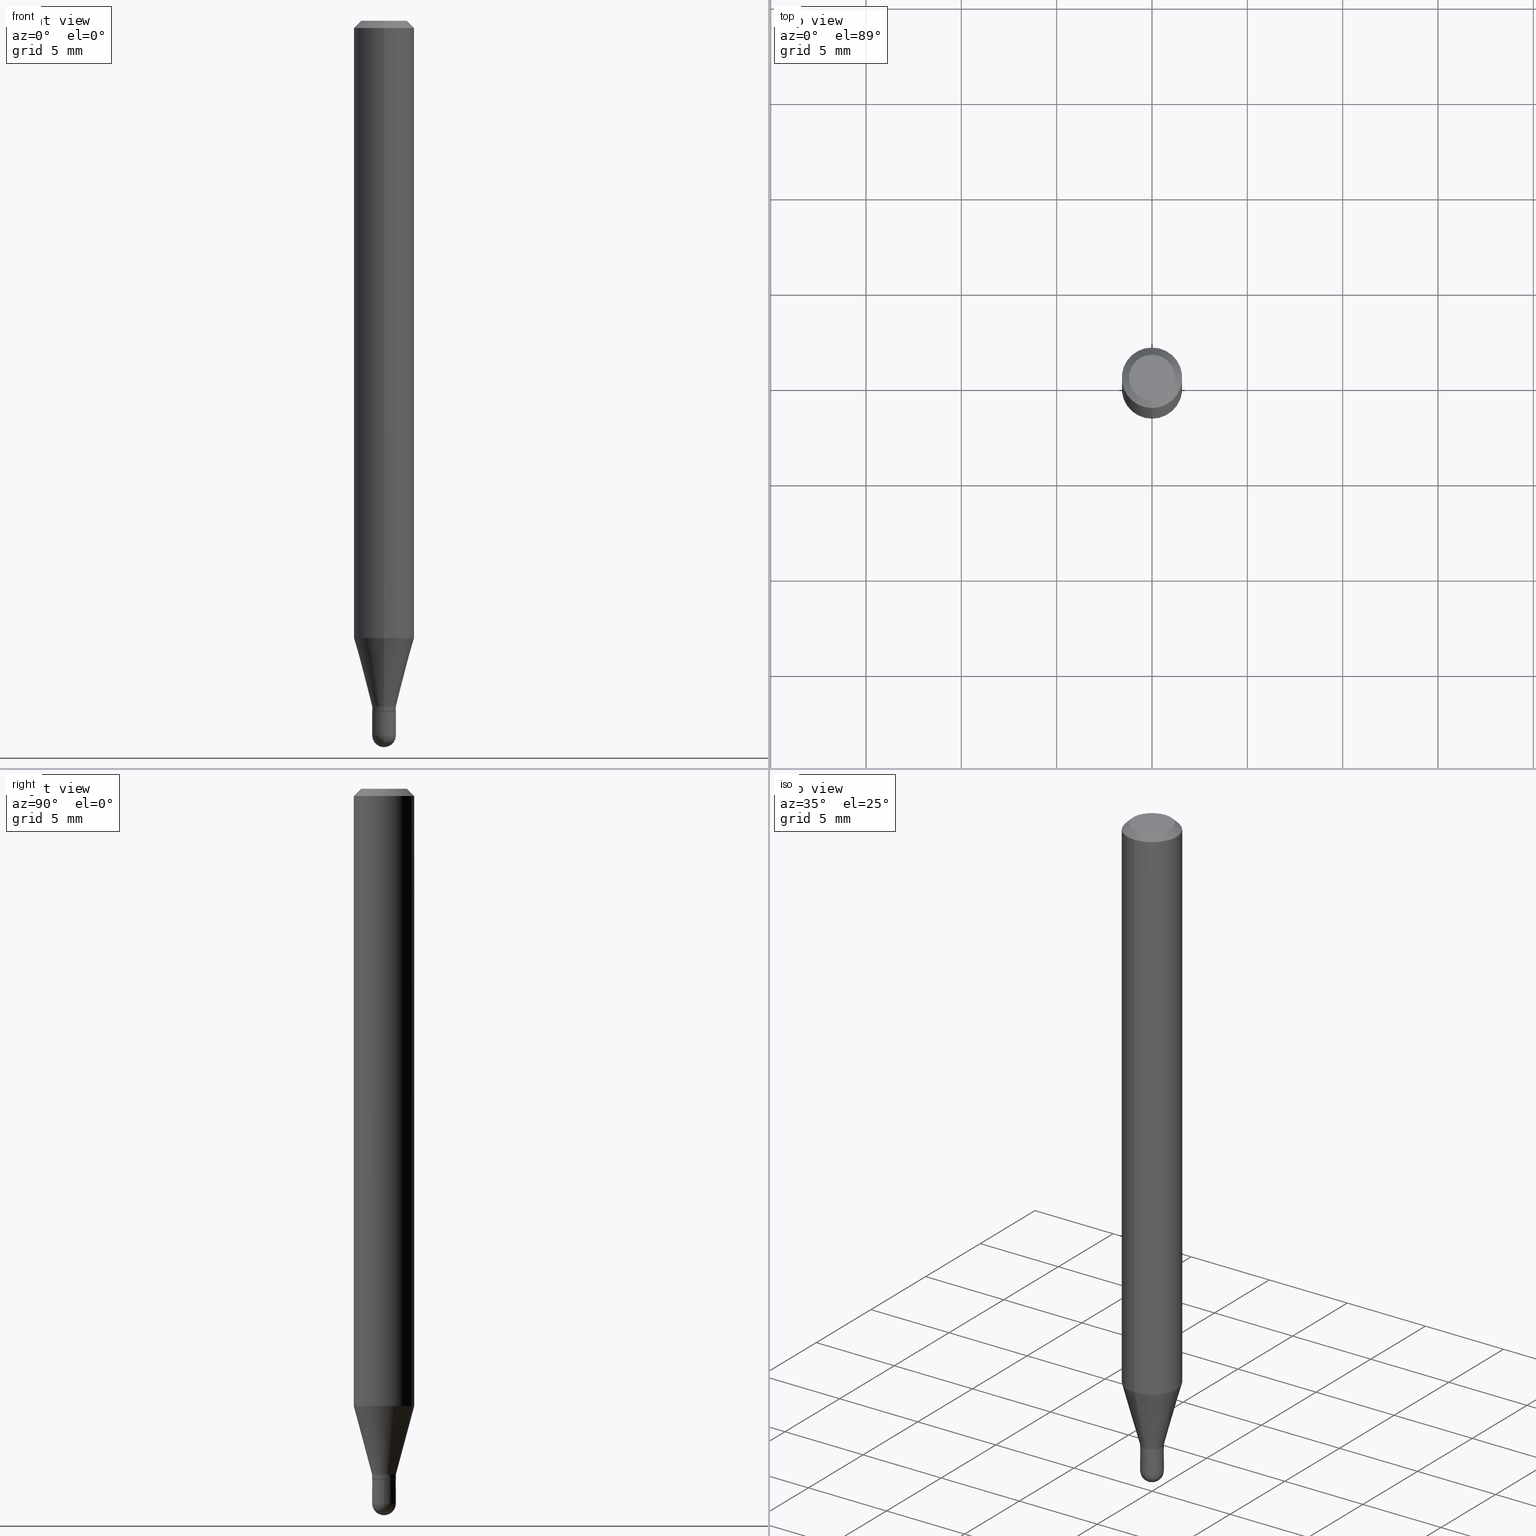
[diagram: canonical four-view strip — front | top / right | iso, engineering-drawing reading convention]
A machine part, canonical four-view strip (front | top / right | iso — engineering-drawing reading convention). The complete STEP part file that produces these views, byte-faithful:
ISO-10303-21;
HEADER;
FILE_DESCRIPTION (( 'STEP AP203' ),
    '1' );
FILE_NAME ('00713.STEP',
    '2024-03-07T18:05:38',
    ( '' ),
    ( '' ),
    'SwSTEP 2.0',
    'SolidWorks 2023',
    '' );
FILE_SCHEMA (( 'CONFIG_CONTROL_DESIGN' ));
ENDSEC;

DATA;
#1 = CARTESIAN_POINT ( 'NONE',  ( 3.462762468961510445E-29, -4.943968165392057642E-15, -1.416000000000000147 ) ) ;
#2 = ORIENTED_EDGE ( 'NONE', *, *, #465, .T. ) ;
#3 = EDGE_CURVE ( 'NONE', #81, #403, #286, .T. ) ;
#4 = ORIENTED_EDGE ( 'NONE', *, *, #117, .T. ) ;
#5 = CARTESIAN_POINT ( 'NONE',  ( 0.000000000000000000, 0.000000000000000000, 0.000000000000000000 ) ) ;
#6 = AXIS2_PLACEMENT_3D ( 'NONE', #431, #37, #226 ) ;
#7 = ORIENTED_EDGE ( 'NONE', *, *, #232, .T. ) ;
#8 = APPROVAL_DATE_TIME ( #129, #386 ) ;
#9 = CARTESIAN_POINT ( 'NONE',  ( -4.364351673553912750E-16, -0.06250000000000005551, -0.01499999999999979128 ) ) ;
#10 = ORIENTED_EDGE ( 'NONE', *, *, #399, .T. ) ;
#11 = PRODUCT_DEFINITION_SHAPE ( 'NONE', 'NONE',  #477 ) ;
#12 = COORDINATED_UNIVERSAL_TIME_OFFSET ( 5, 0, .BEHIND. ) ;
#13 = CARTESIAN_POINT ( 'NONE',  ( 0.000000000000000000, 0.000000000000000000, 0.000000000000000000 ) ) ;
#14 = PERSON_AND_ORGANIZATION_ROLE ( 'creator' ) ;
#15 = DIRECTION ( 'NONE',  ( -2.445468806185136597E-29, 3.491481338843145583E-15, 1.000000000000000000 ) ) ;
#16 = VECTOR ( 'NONE', #56, 39.37007874015748143 ) ;
#17 = DIRECTION ( 'NONE',  ( 6.982962677686265133E-15, 1.000000000000000000, 0.000000000000000000 ) ) ;
#18 = CARTESIAN_POINT ( 'NONE',  ( 1.723066134218588375E-16, 0.02399999999999502184, -1.425999999999999934 ) ) ;
#19 = EDGE_CURVE ( 'NONE', #260, #359, #497, .T. ) ;
#20 = DIRECTION ( 'NONE',  ( -6.982962677686265133E-15, -1.000000000000000000, 0.000000000000000000 ) ) ;
#21 = VERTEX_POINT ( 'NONE', #300 ) ;
#22 = EDGE_CURVE ( 'NONE', #323, #375, #372, .T. ) ;
#23 = PERSON_AND_ORGANIZATION ( #163, #467 ) ;
#24 = EDGE_LOOP ( 'NONE', ( #45, #44, #126, #42 ) ) ;
#25 = CC_DESIGN_PERSON_AND_ORGANIZATION_ASSIGNMENT ( #499, #339, ( #475 ) ) ;
#26 = CIRCLE ( 'NONE', #335, 0.06250000000000000000 ) ;
#27 = AXIS2_PLACEMENT_3D ( 'NONE', #13, #93, #394 ) ;
#28 = DIRECTION ( 'NONE',  ( -2.445468806185136597E-29, 3.491481338843145583E-15, 1.000000000000000000 ) ) ;
#29 = CYLINDRICAL_SURFACE ( 'NONE', #495, 0.02449999999999992462 ) ;
#30 = FACE_OUTER_BOUND ( 'NONE', #239, .T. ) ;
#31 = DIRECTION ( 'NONE',  ( -2.445453721018015268E-29, 3.491502941661057766E-15, 1.000000000000000000 ) ) ;
#32 = AXIS2_PLACEMENT_3D ( 'NONE', #223, #218, #374 ) ;
#33 = CARTESIAN_POINT ( 'NONE',  ( -4.364351673553916201E-16, -0.06250000000000000000, 2.182189338538161104E-16 ) ) ;
#34 = AXIS2_PLACEMENT_3D ( 'NONE', #185, #327, #17 ) ;
#35 = EDGE_CURVE ( 'NONE', #164, #21, #229, .T. ) ;
#36 = CARTESIAN_POINT ( 'NONE',  ( -1.740829702611884372E-16, -0.02450000000000515307, -1.475500000000000256 ) ) ;
#37 = DIRECTION ( 'NONE',  ( -2.445453721018014708E-29, 3.491502941661058160E-15, 1.000000000000000000 ) ) ;
#38 = CARTESIAN_POINT ( 'NONE',  ( 1.740829702612582514E-16, 0.02449999999999486616, -1.425500000000000211 ) ) ;
#39 = CLOSED_SHELL ( 'NONE', ( #290, #285, #337, #57, #368 ) ) ;
#40 = VECTOR ( 'NONE', #69, 39.37007874015748854 ) ;
#41 = LOCAL_TIME ( 13, 5, 38.00000000000000000, #12 ) ;
#42 = ORIENTED_EDGE ( 'NONE', *, *, #469, .F. ) ;
#43 = CYLINDRICAL_SURFACE ( 'NONE', #146, 0.02450000000000000441 ) ;
#44 = ORIENTED_EDGE ( 'NONE', *, *, #94, .T. ) ;
#45 = ORIENTED_EDGE ( 'NONE', *, *, #325, .F. ) ;
#46 = DIRECTION ( 'NONE',  ( -6.982962677686265133E-15, -1.000000000000000000, 0.000000000000000000 ) ) ;
#47 = ORIENTED_EDGE ( 'NONE', *, *, #170, .F. ) ;
#48 = PLANE ( 'NONE',  #175 ) ;
#49 = AXIS2_PLACEMENT_3D ( 'NONE', #340, #145, #421 ) ;
#50 = AXIS2_PLACEMENT_3D ( 'NONE', #483, #402, #127 ) ;
#51 = VERTEX_POINT ( 'NONE', #18 ) ;
#52 = APPROVAL_STATUS ( 'not_yet_approved' ) ;
#53 = CYLINDRICAL_SURFACE ( 'NONE', #27, 0.06250000000000000000 ) ;
#54 = UNCERTAINTY_MEASURE_WITH_UNIT (LENGTH_MEASURE( 1.000000000000000082E-05 ), #138, 'distance_accuracy_value', 'NONE');
#55 = ORIENTED_EDGE ( 'NONE', *, *, #447, .T. ) ;
#56 = DIRECTION ( 'NONE',  ( -2.445453721018015548E-29, 3.491502941661058160E-15, 1.000000000000000000 ) ) ;
#57 = ADVANCED_FACE ( 'NONE', ( #137 ), #225, .T. ) ;
#58 = ORIENTED_EDGE ( 'NONE', *, *, #384, .F. ) ;
#59 = CIRCLE ( 'NONE', #32, 0.02400000000000000050 ) ;
#60 = CARTESIAN_POINT ( 'NONE',  ( -4.287811248607203282E-16, -0.06250000000000005551, -0.01499999999999979128 ) ) ;
#61 = CARTESIAN_POINT ( 'NONE',  ( 3.668180581527025372E-31, -5.237254412491589410E-17, -0.01500000000000000812 ) ) ;
#62 = ORIENTED_EDGE ( 'NONE', *, *, #419, .T. ) ;
#63 = DIRECTION ( 'NONE',  ( -6.982962677686265922E-15, -1.000000000000000000, 3.491502941661057766E-15 ) ) ;
#64 = DIRECTION ( 'NONE',  ( -2.445468806185136877E-29, 3.491481338843145188E-15, 1.000000000000000000 ) ) ;
#65 = APPROVAL_DATE_TIME ( #294, #482 ) ;
#66 = AXIS2_PLACEMENT_3D ( 'NONE', #172, #397, #276 ) ;
#67 =( NAMED_UNIT ( * ) SI_UNIT ( $, .STERADIAN. ) SOLID_ANGLE_UNIT ( ) );
#68 = FACE_OUTER_BOUND ( 'NONE', #484, .T. ) ;
#69 = DIRECTION ( 'NONE',  ( -1.807323732225332900E-15, -0.2588190451025185190, 0.9659258262890689783 ) ) ;
#70 = COORDINATED_UNIVERSAL_TIME_OFFSET ( 5, 0, .BEHIND. ) ;
#71 = FACE_OUTER_BOUND ( 'NONE', #301, .T. ) ;
#72 = DIRECTION ( 'NONE',  ( -2.445468806185136597E-29, 3.491481338843145583E-15, 1.000000000000000000 ) ) ;
#73 = CONICAL_SURFACE ( 'NONE', #109, 0.02400000000000000050, 0.7853981633974739252 ) ;
#74 = LOCAL_TIME ( 13, 5, 38.00000000000000000, #70 ) ;
#75 = FACE_OUTER_BOUND ( 'NONE', #281, .T. ) ;
#76 = FACE_OUTER_BOUND ( 'NONE', #200, .T. ) ;
#77 = EDGE_LOOP ( 'NONE', ( #7, #243 ) ) ;
#78 = ADVANCED_FACE ( 'NONE', ( #68 ), #277, .T. ) ;
#79 = CARTESIAN_POINT ( 'NONE',  ( 1.710825856033483952E-16, 0.02449999999999502229, -1.425999999999999934 ) ) ;
#80 = CIRCLE ( 'NONE', #488, 0.02449999999999992462 ) ;
#81 = VERTEX_POINT ( 'NONE', #502 ) ;
#82 = LINE ( 'NONE', #132, #237 ) ;
#83 = ORIENTED_EDGE ( 'NONE', *, *, #305, .F. ) ;
#84 = EDGE_LOOP ( 'NONE', ( #396, #183, #55, #83 ) ) ;
#85 = CARTESIAN_POINT ( 'NONE',  ( 4.440892098500625669E-16, 0.06250000000000000000, -2.182189338538161104E-16 ) ) ;
#86 = VERTEX_POINT ( 'NONE', #293 ) ;
#87 = PERSON_AND_ORGANIZATION ( #163, #467 ) ;
#88 = CARTESIAN_POINT ( 'NONE',  ( 0.000000000000000000, 0.000000000000000000, 0.000000000000000000 ) ) ;
#89 = VECTOR ( 'NONE', #250, 39.37007874015748143 ) ;
#90 = ADVANCED_FACE ( 'NONE', ( #30 ), #342, .T. ) ;
#91 = AXIS2_PLACEMENT_3D ( 'NONE', #1, #159, #46 ) ;
#92 = ORIENTED_EDGE ( 'NONE', *, *, #94, .F. ) ;
#93 = DIRECTION ( 'NONE',  ( -2.445453721018015268E-29, 3.491502941661057766E-15, 1.000000000000000000 ) ) ;
#94 = EDGE_CURVE ( 'NONE', #398, #86, #124, .T. ) ;
#95 = CARTESIAN_POINT ( 'NONE',  ( 1.740829702612239852E-16, 0.02449999999999992462, -8.554182207069564399E-17 ) ) ;
#96 = DIRECTION ( 'NONE',  ( -2.445453721018015268E-29, 3.491502941661057766E-15, 1.000000000000000000 ) ) ;
#97 = EDGE_CURVE ( 'NONE', #461, #51, #59, .T. ) ;
#98 = DIRECTION ( 'NONE',  ( -2.445453721018015268E-29, 3.491502941661057766E-15, 1.000000000000000000 ) ) ;
#99 = AXIS2_PLACEMENT_3D ( 'NONE', #479, #314, #442 ) ;
#100 = DIRECTION ( 'NONE',  ( -2.445453721018015268E-29, 3.491502941661057766E-15, 1.000000000000000000 ) ) ;
#101 = APPROVAL ( #213, 'UNSPECIFIED' ) ;
#102 = VERTEX_POINT ( 'NONE', #388 ) ;
#103 = VERTEX_POINT ( 'NONE', #426 ) ;
#104 = DIRECTION ( 'NONE',  ( 2.445453721018015268E-29, -3.491502941661057766E-15, -1.000000000000000000 ) ) ;
#105 = DIRECTION ( 'NONE',  ( -1.000000000000000000, 6.982962677686265922E-15, -4.883557194083112901E-29 ) ) ;
#106 = DIRECTION ( 'NONE',  ( -6.982962677686265922E-15, -1.000000000000000000, 3.483106191921935554E-15 ) ) ;
#107 = CARTESIAN_POINT ( 'NONE',  ( 3.608289223526169394E-29, -5.151680715463062135E-15, -1.475500000000000256 ) ) ;
#108 = PERSON_AND_ORGANIZATION ( #163, #467 ) ;
#109 = AXIS2_PLACEMENT_3D ( 'NONE', #231, #503, #148 ) ;
#110 = DIRECTION ( 'NONE',  ( -2.445453721018015548E-29, 3.491502941661058160E-15, 1.000000000000000000 ) ) ;
#111 = DIRECTION ( 'NONE',  ( 6.982962677686265922E-15, 1.000000000000000000, -3.491502941661058160E-15 ) ) ;
#112 = CARTESIAN_POINT ( 'NONE',  ( 3.487238517620005029E-29, -4.978852389190326182E-15, -1.425999999999999934 ) ) ;
#113 = VECTOR ( 'NONE', #110, 39.37007874015748143 ) ;
#114 = FACE_OUTER_BOUND ( 'NONE', #473, .T. ) ;
#115 = CIRCLE ( 'NONE', #266, 0.02450000000000000441 ) ;
#116 = LOCAL_TIME ( 13, 5, 38.00000000000000000, #389 ) ;
#117 = EDGE_CURVE ( 'NONE', #86, #398, #26, .T. ) ;
#118 = DIRECTION ( 'NONE',  ( -6.982962677686265133E-15, -1.000000000000000000, 0.000000000000000000 ) ) ;
#119 = APPROVAL_DATE_TIME ( #152, #101 ) ;
#120 = MANIFOLD_SOLID_BREP ( 'Body-Move/Copy2[1]', #39 ) ;
#121 = LINE ( 'NONE', #407, #256 ) ;
#122 = ORIENTED_EDGE ( 'NONE', *, *, #142, .F. ) ;
#123 = DIRECTION ( 'NONE',  ( 1.000000000000000000, -6.982962677686267499E-15, 4.876176775795936353E-29 ) ) ;
#124 = CIRCLE ( 'NONE', #49, 0.06250000000000000000 ) ;
#125 = VECTOR ( 'NONE', #279, 39.37007874015748143 ) ;
#126 = ORIENTED_EDGE ( 'NONE', *, *, #156, .T. ) ;
#127 = DIRECTION ( 'NONE',  ( -6.982962677686265922E-15, -1.000000000000000000, 0.000000000000000000 ) ) ;
#128 = ORIENTED_EDGE ( 'NONE', *, *, #357, .T. ) ;
#129 = DATE_AND_TIME ( #366, #116 ) ;
#130 = CARTESIAN_POINT ( 'NONE',  ( 0.000000000000000000, 0.000000000000000000, 0.000000000000000000 ) ) ;
#131 = ORIENTED_EDGE ( 'NONE', *, *, #232, .F. ) ;
#132 = CARTESIAN_POINT ( 'NONE',  ( 1.740829702612586212E-16, 0.02449999999999498065, -1.416000000000000147 ) ) ;
#133 = AXIS2_PLACEMENT_3D ( 'NONE', #299, #289, #498 ) ;
#134 = MANIFOLD_SOLID_BREP ( 'Body-Move/Copy2[2]', #377 ) ;
#135 =( NAMED_UNIT ( * ) PLANE_ANGLE_UNIT ( ) SI_UNIT ( $, .RADIAN. ) );
#136 = DIRECTION ( 'NONE',  ( -2.445453721018015268E-29, 3.491502941661057766E-15, 1.000000000000000000 ) ) ;
#137 = FACE_OUTER_BOUND ( 'NONE', #211, .T. ) ;
#138 =( CONVERSION_BASED_UNIT ( 'INCH', #376 ) LENGTH_UNIT ( ) NAMED_UNIT ( #414 ) );
#139 = EDGE_LOOP ( 'NONE', ( #405, #413, #206, #278 ) ) ;
#140 = CIRCLE ( 'NONE', #230, 0.06250000000000000000 ) ;
#141 = APPLICATION_PROTOCOL_DEFINITION ( 'international standard', 'config_control_design', 1994, #204 ) ;
#142 = EDGE_CURVE ( 'NONE', #461, #354, #268, .T. ) ;
#143 = DIRECTION ( 'NONE',  ( -4.851104656540964275E-15, -0.7071067811865500152, -0.7071067811865450192 ) ) ;
#144 = VERTEX_POINT ( 'NONE', #306 ) ;
#145 = DIRECTION ( 'NONE',  ( -2.445453721018015268E-29, 3.491502941661057766E-15, 1.000000000000000000 ) ) ;
#146 = AXIS2_PLACEMENT_3D ( 'NONE', #5, #166, #123 ) ;
#147 = APPROVAL_ROLE ( '' ) ;
#148 = DIRECTION ( 'NONE',  ( -6.982962677686265922E-15, -1.000000000000000000, 0.000000000000000000 ) ) ;
#149 = CC_DESIGN_PERSON_AND_ORGANIZATION_ASSIGNMENT ( #23, #182, ( #283 ) ) ;
#150 = DIRECTION ( 'NONE',  ( -4.937700262164674260E-15, -0.7071067811865632269, 0.7071067811865319186 ) ) ;
#151 = DIRECTION ( 'NONE',  ( -6.982962677686265922E-15, -1.000000000000000000, 4.370956789862821150E-15 ) ) ;
#152 = DATE_AND_TIME ( #193, #74 ) ;
#153 = CIRCLE ( 'NONE', #474, 0.04749999999999999362 ) ;
#154 = CONICAL_SURFACE ( 'NONE', #444, 0.06250000000000000000, 0.7853981633974483900 ) ;
#155 = DIRECTION ( 'NONE',  ( 1.000000000000000000, -6.982962677686273810E-15, 0.000000000000000000 ) ) ;
#156 = EDGE_CURVE ( 'NONE', #86, #359, #157, .T. ) ;
#157 = LINE ( 'NONE', #33, #113 ) ;
#158 = EDGE_LOOP ( 'NONE', ( #378, #128, #471, #313 ) ) ;
#159 = DIRECTION ( 'NONE',  ( -2.445453721018015268E-29, 3.491502941661057766E-15, 1.000000000000000000 ) ) ;
#160 = ADVANCED_FACE ( 'NONE', ( #71 ), #184, .T. ) ;
#161 = ORIENTED_EDGE ( 'NONE', *, *, #447, .F. ) ;
#162 = CARTESIAN_POINT ( 'NONE',  ( -0.02450000000000000441, 1.740829702612245769E-16, -1.205139097112452116E-30 ) ) ;
#163 = PERSON ( 'UNSPECIFIED', 'UNSPECIFIED', 'UNSPECIFIED', ('UNSPECIFIED'), ('UNSPECIFIED'), ('UNSPECIFIED') ) ;
#164 = VERTEX_POINT ( 'NONE', #195 ) ;
#165 = CC_DESIGN_PERSON_AND_ORGANIZATION_ASSIGNMENT ( #401, #14, ( #477 ) ) ;
#166 = DIRECTION ( 'NONE',  ( -2.445468806185136597E-29, 3.491481338843145583E-15, 1.000000000000000000 ) ) ;
#167 = EDGE_LOOP ( 'NONE', ( #353, #220, #10, #252 ) ) ;
#168 = CALENDAR_DATE ( 2024, 7, 3 ) ;
#169 = CARTESIAN_POINT ( 'NONE',  ( -1.710825856033129704E-16, -0.02449999999999992462, 8.554182207069564399E-17 ) ) ;
#170 = EDGE_CURVE ( 'NONE', #51, #248, #462, .T. ) ;
#171 = ORIENTED_EDGE ( 'NONE', *, *, #35, .F. ) ;
#172 = CARTESIAN_POINT ( 'NONE',  ( 2.166499215240843409E-46, -3.093224916957672110E-32, -8.859293457980281968E-18 ) ) ;
#173 = VECTOR ( 'NONE', #143, 39.37007874015748143 ) ;
#174 = EDGE_CURVE ( 'NONE', #260, #338, #153, .T. ) ;
#175 = AXIS2_PLACEMENT_3D ( 'NONE', #79, #209, #470 ) ;
#176 = APPROVAL_PERSON_ORGANIZATION ( #298, #386, #147 ) ;
#177 = DATE_TIME_ROLE ( 'classification_date' ) ;
#178 = ORIENTED_EDGE ( 'NONE', *, *, #97, .F. ) ;
#179 = CC_DESIGN_DATE_AND_TIME_ASSIGNMENT ( #489, #486, ( #477 ) ) ;
#180 =( LENGTH_UNIT ( ) NAMED_UNIT ( * ) SI_UNIT ( $, .METRE. ) );
#181 = DIRECTION ( 'NONE',  ( 6.982962677686265922E-15, 1.000000000000000000, 0.000000000000000000 ) ) ;
#182 = PERSON_AND_ORGANIZATION_ROLE ( 'design_owner' ) ;
#183 = ORIENTED_EDGE ( 'NONE', *, *, #19, .T. ) ;
#184 = CONICAL_SURFACE ( 'NONE', #308, 0.02449999999999992462, 0.2617993877991506291 ) ;
#185 = CARTESIAN_POINT ( 'NONE',  ( 3.606194066117680480E-29, -5.154681100120972780E-15, -1.475500000000000256 ) ) ;
#186 = CARTESIAN_POINT ( 'NONE',  ( 0.02450000000000000441, -1.710825856033135867E-16, 1.194663310070004571E-30 ) ) ;
#187 = DIRECTION ( 'NONE',  ( -6.982962677686265133E-15, -1.000000000000000000, 0.000000000000000000 ) ) ;
#188 = EDGE_CURVE ( 'NONE', #21, #244, #115, .T. ) ;
#189 = DIRECTION ( 'NONE',  ( -2.445453721018015268E-29, 3.491502941661057766E-15, 1.000000000000000000 ) ) ;
#190 = CIRCLE ( 'NONE', #34, 0.02449999999999998707 ) ;
#191 = APPROVAL_PERSON_ORGANIZATION ( #87, #482, #363 ) ;
#192 = CARTESIAN_POINT ( 'NONE',  ( 3.608289223526169394E-29, -5.151680715463062135E-15, -1.475500000000000256 ) ) ;
#193 = CALENDAR_DATE ( 2024, 7, 3 ) ;
#194 = CARTESIAN_POINT ( 'NONE',  ( 3.462762468961510445E-29, -4.943968165392057642E-15, -1.416000000000000147 ) ) ;
#195 = CARTESIAN_POINT ( 'NONE',  ( 1.710825856033495538E-16, 0.02449999999999483841, -1.475500000000000256 ) ) ;
#196 = AXIS2_PLACEMENT_3D ( 'NONE', #307, #341, #390 ) ;
#197 = CARTESIAN_POINT ( 'NONE',  ( 3.606194066117680480E-29, -5.154681100120972780E-15, -1.475500000000000256 ) ) ;
#198 = ORIENTED_EDGE ( 'NONE', *, *, #201, .F. ) ;
#199 = FACE_OUTER_BOUND ( 'NONE', #158, .T. ) ;
#200 = EDGE_LOOP ( 'NONE', ( #437, #351, #365, #171 ) ) ;
#201 = EDGE_CURVE ( 'NONE', #144, #375, #272, .T. ) ;
#202 = ORIENTED_EDGE ( 'NONE', *, *, #330, .T. ) ;
#203 = FACE_OUTER_BOUND ( 'NONE', #400, .T. ) ;
#204 = APPLICATION_CONTEXT ( 'configuration controlled 3d designs of mechanical parts and assemblies' ) ;
#205 = EDGE_CURVE ( 'NONE', #403, #86, #468, .T. ) ;
#206 = ORIENTED_EDGE ( 'NONE', *, *, #247, .F. ) ;
#207 = CALENDAR_DATE ( 2024, 7, 3 ) ;
#208 = DATE_AND_TIME ( #318, #210 ) ;
#209 = DIRECTION ( 'NONE',  ( 2.438088387897960049E-29, -3.491481338843145188E-15, -1.000000000000000000 ) ) ;
#210 = LOCAL_TIME ( 13, 5, 38.00000000000000000, #234 ) ;
#211 = EDGE_LOOP ( 'NONE', ( #500, #2, #418, #316 ) ) ;
#212 = CYLINDRICAL_SURFACE ( 'NONE', #466, 0.02450000000000000441 ) ;
#213 = APPROVAL_STATUS ( 'not_yet_approved' ) ;
#214 = CARTESIAN_POINT ( 'NONE',  ( -1.710825856032783344E-16, -0.02450000000000486858, -1.416000000000000147 ) ) ;
#215 = CARTESIAN_POINT ( 'NONE',  ( 3.462762468961510445E-29, -4.943968165392057642E-15, -1.416000000000000147 ) ) ;
#216 = CONICAL_SURFACE ( 'NONE', #91, 0.02449999999999992462, 0.2617993877991506291 ) ;
#217 = CARTESIAN_POINT ( 'NONE',  ( 0.000000000000000000, 0.000000000000000000, 0.000000000000000000 ) ) ;
#218 = DIRECTION ( 'NONE',  ( -2.445453721018015268E-29, 3.491502941661057766E-15, 1.000000000000000000 ) ) ;
#219 = MECHANICAL_CONTEXT ( 'NONE', #291, 'mechanical' ) ;
#220 = ORIENTED_EDGE ( 'NONE', *, *, #440, .T. ) ;
#221 = PERSON_AND_ORGANIZATION_ROLE ( 'creator' ) ;
#222 = LINE ( 'NONE', #95, #89 ) ;
#223 = CARTESIAN_POINT ( 'NONE',  ( 3.487217006171689992E-29, -4.978883194808668468E-15, -1.425999999999999934 ) ) ;
#224 = CARTESIAN_POINT ( 'NONE',  ( -1.675911042644354999E-16, -0.02400000000000497569, -1.425999999999999934 ) ) ;
#225 = SPHERICAL_SURFACE ( 'NONE', #434, 0.02449999999999998707 ) ;
#226 = DIRECTION ( 'NONE',  ( -6.982962677686265922E-15, -1.000000000000000000, 3.491502941661058160E-15 ) ) ;
#227 = ORIENTED_EDGE ( 'NONE', *, *, #357, .F. ) ;
#228 = DIRECTION ( 'NONE',  ( -6.982962677686265133E-15, -1.000000000000000000, 0.000000000000000000 ) ) ;
#229 = CIRCLE ( 'NONE', #369, 0.02450000000000000441 ) ;
#230 = AXIS2_PLACEMENT_3D ( 'NONE', #457, #96, #106 ) ;
#231 = CARTESIAN_POINT ( 'NONE',  ( 3.487217006171689992E-29, -4.978883194808668468E-15, -1.425999999999999934 ) ) ;
#232 = EDGE_CURVE ( 'NONE', #375, #144, #392, .T. ) ;
#233 = CARTESIAN_POINT ( 'NONE',  ( 3.462762468961510445E-29, -4.943968165392057642E-15, -1.416000000000000147 ) ) ;
#234 = COORDINATED_UNIVERSAL_TIME_OFFSET ( 5, 0, .BEHIND. ) ;
#235 = SPHERICAL_SURFACE ( 'NONE', #360, 0.02449999999999998707 ) ;
#236 = ORIENTED_EDGE ( 'NONE', *, *, #330, .F. ) ;
#237 = VECTOR ( 'NONE', #284, 39.37007874015748143 ) ;
#238 = LINE ( 'NONE', #85, #428 ) ;
#239 = EDGE_LOOP ( 'NONE', ( #47, #202, #332, #485 ) ) ;
#240 = CARTESIAN_POINT ( 'NONE',  ( 4.440892098500935790E-16, 0.06249999999999553135, -1.274182069312383536 ) ) ;
#241 = ORIENTED_EDGE ( 'NONE', *, *, #469, .T. ) ;
#242 = CARTESIAN_POINT ( 'NONE',  ( -1.710825856032787042E-16, -0.02450000000000498307, -1.425500000000000211 ) ) ;
#243 = ORIENTED_EDGE ( 'NONE', *, *, #201, .T. ) ;
#244 = VERTEX_POINT ( 'NONE', #36 ) ;
#245 = DIRECTION ( 'NONE',  ( -2.445468806185136597E-29, 3.491481338843145583E-15, 1.000000000000000000 ) ) ;
#246 = CIRCLE ( 'NONE', #50, 0.02400000000000000050 ) ;
#247 = EDGE_CURVE ( 'NONE', #403, #81, #80, .T. ) ;
#248 = VERTEX_POINT ( 'NONE', #38 ) ;
#249 = FACE_OUTER_BOUND ( 'NONE', #476, .T. ) ;
#250 = DIRECTION ( 'NONE',  ( -2.445453721018015548E-29, 3.491502941661058160E-15, 1.000000000000000000 ) ) ;
#251 = ORIENTED_EDGE ( 'NONE', *, *, #419, .F. ) ;
#252 = ORIENTED_EDGE ( 'NONE', *, *, #3, .F. ) ;
#253 = DIRECTION ( 'NONE',  ( -2.445453721018015268E-29, 3.491502941661057766E-15, 1.000000000000000000 ) ) ;
#254 = EDGE_CURVE ( 'NONE', #244, #323, #509, .T. ) ;
#255 = DIRECTION ( 'NONE',  ( 6.982962677686265922E-15, 1.000000000000000000, -3.483106191921935554E-15 ) ) ;
#256 = VECTOR ( 'NONE', #439, 39.37007874015748143 ) ;
#257 = CC_DESIGN_SECURITY_CLASSIFICATION ( #475, ( #436 ) ) ;
#258 = ORIENTED_EDGE ( 'NONE', *, *, #22, .F. ) ;
#259 = CARTESIAN_POINT ( 'NONE',  ( 0.000000000000000000, 0.000000000000000000, 0.000000000000000000 ) ) ;
#260 = VERTEX_POINT ( 'NONE', #506 ) ;
#261 = APPROVAL_STATUS ( 'not_yet_approved' ) ;
#262 = DIRECTION ( 'NONE',  ( -6.982962677686265922E-15, -1.000000000000000000, 0.000000000000000000 ) ) ;
#263 = ADVANCED_FACE ( 'NONE', ( #505 ), #73, .T. ) ;
#264 = FACE_OUTER_BOUND ( 'NONE', #84, .T. ) ;
#265 = DIRECTION ( 'NONE',  ( -2.445453721018015268E-29, 3.491502941661057766E-15, 1.000000000000000000 ) ) ;
#266 = AXIS2_PLACEMENT_3D ( 'NONE', #192, #463, #345 ) ;
#267 = CARTESIAN_POINT ( 'NONE',  ( 2.166499215240843409E-46, -3.093224916957672110E-32, -8.859293457980281968E-18 ) ) ;
#268 = LINE ( 'NONE', #310, #315 ) ;
#269 = CARTESIAN_POINT ( 'NONE',  ( -1.710825856032783344E-16, -0.02450000000000486858, -1.416000000000000147 ) ) ;
#270 = ADVANCED_FACE ( 'NONE', ( #346 ), #464, .F. ) ;
#271 = AXIS2_PLACEMENT_3D ( 'NONE', #451, #98, #262 ) ;
#272 = CIRCLE ( 'NONE', #406, 0.02450000000000000094 ) ;
#273 = CARTESIAN_POINT ( 'NONE',  ( 3.316907271900976096E-16, 0.04749999999999999362, -1.702760364578903403E-16 ) ) ;
#274 = DIRECTION ( 'NONE',  ( 1.000000000000000000, -6.982962677686272233E-15, 0.000000000000000000 ) ) ;
#275 = ADVANCED_FACE ( 'NONE', ( #114 ), #383, .F. ) ;
#276 = DIRECTION ( 'NONE',  ( -6.982962677686266711E-15, -1.000000000000000000, 3.491502941661058160E-15 ) ) ;
#277 = CONICAL_SURFACE ( 'NONE', #358, 0.06250000000000000000, 0.7853981633974483900 ) ;
#278 = ORIENTED_EDGE ( 'NONE', *, *, #399, .F. ) ;
#279 = DIRECTION ( 'NONE',  ( -2.445468806185136877E-29, 3.491481338843145188E-15, 1.000000000000000000 ) ) ;
#280 = ORIENTED_EDGE ( 'NONE', *, *, #460, .F. ) ;
#281 = EDGE_LOOP ( 'NONE', ( #480, #417, #131, #258, #362 ) ) ;
#282 = LINE ( 'NONE', #169, #16 ) ;
#283 = PRODUCT ( '00713', '00713', '', ( #219 ) ) ;
#284 = DIRECTION ( 'NONE',  ( 1.839019923739602682E-15, 0.2588190451025252914, 0.9659258262890670910 ) ) ;
#285 = ADVANCED_FACE ( 'NONE', ( #76 ), #235, .T. ) ;
#286 = CIRCLE ( 'NONE', #326, 0.02449999999999992462 ) ;
#287 = CARTESIAN_POINT ( 'NONE',  ( 3.840629472727447874E-16, 0.04749999999999999362, -1.747056831868805136E-16 ) ) ;
#288 = CIRCLE ( 'NONE', #387, 0.02449999999999992462 ) ;
#289 = DIRECTION ( 'NONE',  ( 0.000000000000000000, 0.000000000000000000, 1.000000000000000000 ) ) ;
#290 = ADVANCED_FACE ( 'NONE', ( #75 ), #212, .T. ) ;
#291 = APPLICATION_CONTEXT ( 'configuration controlled 3d designs of mechanical parts and assemblies' ) ;
#292 = FACE_OUTER_BOUND ( 'NONE', #167, .T. ) ;
#293 = CARTESIAN_POINT ( 'NONE',  ( -4.364351673553605587E-16, -0.06250000000000446865, -1.274182069312382870 ) ) ;
#294 = DATE_AND_TIME ( #168, #41 ) ;
#295 = DIRECTION ( 'NONE',  ( -6.982962677686265133E-15, -1.000000000000000000, 3.491502941661057371E-15 ) ) ;
#296 = ORIENTED_EDGE ( 'NONE', *, *, #325, .T. ) ;
#297 =( GEOMETRIC_REPRESENTATION_CONTEXT ( 3 ) GLOBAL_UNCERTAINTY_ASSIGNED_CONTEXT ( ( #54 ) ) GLOBAL_UNIT_ASSIGNED_CONTEXT ( ( #138, #135, #67 ) ) REPRESENTATION_CONTEXT ( 'NONE', 'WORKASPACE' ) );
#298 = PERSON_AND_ORGANIZATION ( #163, #467 ) ;
#299 = CARTESIAN_POINT ( 'NONE',  ( 0.000000000000000000, 0.000000000000000000, 0.000000000000000000 ) ) ;
#300 = CARTESIAN_POINT ( 'NONE',  ( -0.02450000000000000441, -4.891183582065470642E-15, -1.475500000000000256 ) ) ;
#301 = EDGE_LOOP ( 'NONE', ( #227, #458, #334, #92 ) ) ;
#302 = AXIS2_PLACEMENT_3D ( 'NONE', #367, #245, #319 ) ;
#303 = CC_DESIGN_PERSON_AND_ORGANIZATION_ASSIGNMENT ( #108, #221, ( #436 ) ) ;
#304 = DIRECTION ( 'NONE',  ( 2.445453721018014708E-29, -3.491502941661058160E-15, -1.000000000000000000 ) ) ;
#305 = EDGE_CURVE ( 'NONE', #338, #103, #121, .T. ) ;
#306 = CARTESIAN_POINT ( 'NONE',  ( -0.02450000000000000094, -4.891183582065470642E-15, -1.425999999999999934 ) ) ;
#307 = CARTESIAN_POINT ( 'NONE',  ( 3.487238517620005029E-29, -4.978852389190326182E-15, -1.425999999999999934 ) ) ;
#308 = AXIS2_PLACEMENT_3D ( 'NONE', #233, #31, #118 ) ;
#309 = CIRCLE ( 'NONE', #66, 0.04749999999999999362 ) ;
#310 = CARTESIAN_POINT ( 'NONE',  ( -1.675911042644354999E-16, -0.02400000000000497569, -1.425999999999999934 ) ) ;
#311 = DIRECTION ( 'NONE',  ( -6.982962677686266711E-15, -1.000000000000000000, 3.491502941661058160E-15 ) ) ;
#312 = SHAPE_DEFINITION_REPRESENTATION ( #11, #410 ) ;
#313 = ORIENTED_EDGE ( 'NONE', *, *, #205, .F. ) ;
#314 = DIRECTION ( 'NONE',  ( -2.445453721018015268E-29, 3.491502941661057766E-15, 1.000000000000000000 ) ) ;
#315 = VECTOR ( 'NONE', #150, 39.37007874015748143 ) ;
#316 = ORIENTED_EDGE ( 'NONE', *, *, #254, .F. ) ;
#317 = CIRCLE ( 'NONE', #379, 0.06250000000000000000 ) ;
#318 = CALENDAR_DATE ( 2024, 7, 3 ) ;
#319 = DIRECTION ( 'NONE',  ( 1.000000000000000000, -6.982962677686272233E-15, 0.000000000000000000 ) ) ;
#320 = ORIENTED_EDGE ( 'NONE', *, *, #174, .T. ) ;
#321 = CYLINDRICAL_SURFACE ( 'NONE', #415, 0.06250000000000000000 ) ;
#322 = EDGE_CURVE ( 'NONE', #102, #244, #336, .T. ) ;
#323 = VERTEX_POINT ( 'NONE', #438 ) ;
#324 = DIRECTION ( 'NONE',  ( -1.000000000000000000, 7.105427357601001070E-15, -4.926315508542082329E-29 ) ) ;
#325 = EDGE_CURVE ( 'NONE', #398, #103, #238, .T. ) ;
#326 = AXIS2_PLACEMENT_3D ( 'NONE', #215, #265, #187 ) ;
#327 = DIRECTION ( 'NONE',  ( 1.000000000000000000, -6.982962677686265922E-15, 4.883557194083112340E-29 ) ) ;
#328 = AXIS2_PLACEMENT_3D ( 'NONE', #273, #304, #111 ) ;
#329 = CC_DESIGN_APPROVAL ( #386, ( #477 ) ) ;
#330 = EDGE_CURVE ( 'NONE', #51, #461, #246, .T. ) ;
#331 = EDGE_LOOP ( 'NONE', ( #393, #432, #280, #122 ) ) ;
#332 = ORIENTED_EDGE ( 'NONE', *, *, #142, .T. ) ;
#333 = CYLINDRICAL_SURFACE ( 'NONE', #348, 0.02449999999999992462 ) ;
#334 = ORIENTED_EDGE ( 'NONE', *, *, #205, .T. ) ;
#335 = AXIS2_PLACEMENT_3D ( 'NONE', #391, #189, #151 ) ;
#336 = CIRCLE ( 'NONE', #371, 0.02449999999999998707 ) ;
#337 = ADVANCED_FACE ( 'NONE', ( #472 ), #48, .F. ) ;
#338 = VERTEX_POINT ( 'NONE', #287 ) ;
#339 = PERSON_AND_ORGANIZATION_ROLE ( 'classification_officer' ) ;
#340 = CARTESIAN_POINT ( 'NONE',  ( 3.115953282654402493E-29, -4.448810443215959236E-15, -1.274182069312383314 ) ) ;
#341 = DIRECTION ( 'NONE',  ( -2.445468806185136597E-29, 3.491481338843145583E-15, 1.000000000000000000 ) ) ;
#342 = CONICAL_SURFACE ( 'NONE', #271, 0.02400000000000000050, 0.7853981633974739252 ) ;
#343 = AXIS2_PLACEMENT_3D ( 'NONE', #510, #425, #274 ) ;
#344 = ADVANCED_FACE ( 'NONE', ( #361 ), #53, .T. ) ;
#345 = DIRECTION ( 'NONE',  ( 1.000000000000000000, -6.982962677686272233E-15, 0.000000000000000000 ) ) ;
#346 = FACE_OUTER_BOUND ( 'NONE', #453, .T. ) ;
#347 = CARTESIAN_POINT ( 'NONE',  ( 1.705302565824588813E-16, 0.02399999999999502184, -1.425999999999999934 ) ) ;
#348 = AXIS2_PLACEMENT_3D ( 'NONE', #259, #492, #422 ) ;
#349 = LOCAL_TIME ( 13, 5, 38.00000000000000000, #478 ) ;
#350 = DIRECTION ( 'NONE',  ( -1.000000000000000000, 6.982962677686265922E-15, -4.883557194083112901E-29 ) ) ;
#351 = ORIENTED_EDGE ( 'NONE', *, *, #322, .T. ) ;
#352 = LINE ( 'NONE', #162, #125 ) ;
#353 = ORIENTED_EDGE ( 'NONE', *, *, #501, .F. ) ;
#354 = VERTEX_POINT ( 'NONE', #242 ) ;
#355 = DIRECTION ( 'NONE',  ( 1.000000000000000000, -6.982962677686267499E-15, 4.876176775795936353E-29 ) ) ;
#356 = DESIGN_CONTEXT ( 'detailed design', #204, 'design' ) ;
#357 = EDGE_CURVE ( 'NONE', #81, #398, #82, .T. ) ;
#358 = AXIS2_PLACEMENT_3D ( 'NONE', #382, #456, #255 ) ;
#359 = VERTEX_POINT ( 'NONE', #9 ) ;
#360 = AXIS2_PLACEMENT_3D ( 'NONE', #197, #350, #487 ) ;
#361 = FACE_OUTER_BOUND ( 'NONE', #24, .T. ) ;
#362 = ORIENTED_EDGE ( 'NONE', *, *, #408, .T. ) ;
#363 = APPROVAL_ROLE ( '' ) ;
#364 = DIRECTION ( 'NONE',  ( -7.105427357601001070E-15, -1.000000000000000000, 0.000000000000000000 ) ) ;
#365 = ORIENTED_EDGE ( 'NONE', *, *, #188, .F. ) ;
#366 = CALENDAR_DATE ( 2024, 7, 3 ) ;
#367 = CARTESIAN_POINT ( 'NONE',  ( 3.608289223526169394E-29, -5.151680715463062135E-15, -1.475500000000000256 ) ) ;
#368 = ADVANCED_FACE ( 'NONE', ( #249 ), #43, .T. ) ;
#369 = AXIS2_PLACEMENT_3D ( 'NONE', #107, #28, #491 ) ;
#370 = APPLICATION_PROTOCOL_DEFINITION ( 'international standard', 'config_control_design', 1994, #291 ) ;
#371 = AXIS2_PLACEMENT_3D ( 'NONE', #446, #324, #364 ) ;
#372 = LINE ( 'NONE', #186, #494 ) ;
#373 = CARTESIAN_POINT ( 'NONE',  ( 3.485994279311180903E-29, -4.977137443337837650E-15, -1.425500000000000211 ) ) ;
#374 = DIRECTION ( 'NONE',  ( -6.982962677686265922E-15, -1.000000000000000000, 0.000000000000000000 ) ) ;
#375 = VERTEX_POINT ( 'NONE', #409 ) ;
#376 = LENGTH_MEASURE_WITH_UNIT ( LENGTH_MEASURE( 0.02539999999999999897 ), #180 );
#377 = CLOSED_SHELL ( 'NONE', ( #452, #263, #507, #443, #430, #160, #344, #78, #275, #270, #90, #511 ) ) ;
#378 = ORIENTED_EDGE ( 'NONE', *, *, #247, .T. ) ;
#379 = AXIS2_PLACEMENT_3D ( 'NONE', #61, #454, #490 ) ;
#380 = PERSON_AND_ORGANIZATION ( #163, #467 ) ;
#381 = FACE_OUTER_BOUND ( 'NONE', #139, .T. ) ;
#382 = CARTESIAN_POINT ( 'NONE',  ( 3.668180581527025372E-31, -5.237254412491589410E-17, -0.01500000000000000812 ) ) ;
#383 = PLANE ( 'NONE',  #328 ) ;
#384 = EDGE_CURVE ( 'NONE', #21, #144, #352, .T. ) ;
#385 = DIRECTION ( 'NONE',  ( -2.445453721018015268E-29, 3.491502941661057766E-15, 1.000000000000000000 ) ) ;
#386 = APPROVAL ( #261, 'UNSPECIFIED' ) ;
#387 = AXIS2_PLACEMENT_3D ( 'NONE', #373, #100, #20 ) ;
#388 = CARTESIAN_POINT ( 'NONE',  ( 3.667155630573460999E-29, -5.238722200593674288E-15, -1.500000000000000222 ) ) ;
#389 = COORDINATED_UNIVERSAL_TIME_OFFSET ( 5, 0, .BEHIND. ) ;
#390 = DIRECTION ( 'NONE',  ( 1.000000000000000000, -6.982962677686273810E-15, 0.000000000000000000 ) ) ;
#391 = CARTESIAN_POINT ( 'NONE',  ( 3.115953282654402493E-29, -4.448810443215959236E-15, -1.274182069312383314 ) ) ;
#392 = CIRCLE ( 'NONE', #196, 0.02450000000000000094 ) ;
#393 = ORIENTED_EDGE ( 'NONE', *, *, #97, .T. ) ;
#394 = DIRECTION ( 'NONE',  ( -6.982962677686265922E-15, -1.000000000000000000, 3.491502941661057766E-15 ) ) ;
#395 = ORIENTED_EDGE ( 'NONE', *, *, #22, .T. ) ;
#396 = ORIENTED_EDGE ( 'NONE', *, *, #174, .F. ) ;
#397 = DIRECTION ( 'NONE',  ( -2.445453721018015268E-29, 3.491502941661057766E-15, 1.000000000000000000 ) ) ;
#398 = VERTEX_POINT ( 'NONE', #240 ) ;
#399 = EDGE_CURVE ( 'NONE', #354, #403, #282, .T. ) ;
#400 = EDGE_LOOP ( 'NONE', ( #4, #296, #161, #445 ) ) ;
#401 = PERSON_AND_ORGANIZATION ( #163, #467 ) ;
#402 = DIRECTION ( 'NONE',  ( -2.445453721018015268E-29, 3.491502941661057766E-15, 1.000000000000000000 ) ) ;
#403 = VERTEX_POINT ( 'NONE', #214 ) ;
#404 = VECTOR ( 'NONE', #508, 39.37007874015748143 ) ;
#405 = ORIENTED_EDGE ( 'NONE', *, *, #460, .T. ) ;
#406 = AXIS2_PLACEMENT_3D ( 'NONE', #112, #72, #155 ) ;
#407 = CARTESIAN_POINT ( 'NONE',  ( 4.364351673553919652E-16, 0.06249999999999995143, -0.01500000000000022669 ) ) ;
#408 = EDGE_CURVE ( 'NONE', #323, #164, #435, .T. ) ;
#409 = CARTESIAN_POINT ( 'NONE',  ( 0.02450000000000000094, -5.149934974793639843E-15, -1.425999999999999934 ) ) ;
#410 = ADVANCED_BREP_SHAPE_REPRESENTATION ( '00713', ( #120, #134, #133 ), #297 ) ;
#411 = DIRECTION ( 'NONE',  ( 6.982962677686265922E-15, 1.000000000000000000, -3.483106191921935554E-15 ) ) ;
#412 = ORIENTED_EDGE ( 'NONE', *, *, #254, .T. ) ;
#413 = ORIENTED_EDGE ( 'NONE', *, *, #501, .T. ) ;
#414 = DIMENSIONAL_EXPONENTS ( 1.000000000000000000, 0.000000000000000000, 0.000000000000000000, 0.000000000000000000, 0.000000000000000000, 0.000000000000000000, 0.000000000000000000 ) ;
#415 = AXIS2_PLACEMENT_3D ( 'NONE', #88, #136, #63 ) ;
#416 = CC_DESIGN_APPROVAL ( #101, ( #475 ) ) ;
#417 = ORIENTED_EDGE ( 'NONE', *, *, #384, .T. ) ;
#418 = ORIENTED_EDGE ( 'NONE', *, *, #408, .F. ) ;
#419 = EDGE_CURVE ( 'NONE', #338, #260, #309, .T. ) ;
#420 = CARTESIAN_POINT ( 'NONE',  ( 3.668180581527025372E-31, -5.237254412491589410E-17, -0.01500000000000000812 ) ) ;
#421 = DIRECTION ( 'NONE',  ( -6.982962677686265922E-15, -1.000000000000000000, 4.370956789862821150E-15 ) ) ;
#422 = DIRECTION ( 'NONE',  ( -6.982962677686265133E-15, -1.000000000000000000, 3.491502941661057371E-15 ) ) ;
#423 = ORIENTED_EDGE ( 'NONE', *, *, #305, .T. ) ;
#424 = CC_DESIGN_PERSON_AND_ORGANIZATION_ASSIGNMENT ( #380, #450, ( #436 ) ) ;
#425 = DIRECTION ( 'NONE',  ( -2.445468806185136597E-29, 3.491481338843145583E-15, 1.000000000000000000 ) ) ;
#426 = CARTESIAN_POINT ( 'NONE',  ( 4.440892098500939734E-16, 0.06249999999999995143, -0.01500000000000022669 ) ) ;
#427 = DIRECTION ( 'NONE',  ( -2.445453721018015268E-29, 3.491502941661057766E-15, 1.000000000000000000 ) ) ;
#428 = VECTOR ( 'NONE', #433, 39.37007874015748143 ) ;
#429 = CC_DESIGN_APPROVAL ( #482, ( #436 ) ) ;
#430 = ADVANCED_FACE ( 'NONE', ( #199 ), #216, .T. ) ;
#431 = CARTESIAN_POINT ( 'NONE',  ( 3.487217006171689992E-29, -4.978883194808668468E-15, -1.425999999999999934 ) ) ;
#432 = ORIENTED_EDGE ( 'NONE', *, *, #170, .T. ) ;
#433 = DIRECTION ( 'NONE',  ( -2.445453721018015548E-29, 3.491502941661058160E-15, 1.000000000000000000 ) ) ;
#434 = AXIS2_PLACEMENT_3D ( 'NONE', #493, #105, #181 ) ;
#435 = CIRCLE ( 'NONE', #302, 0.02450000000000000441 ) ;
#436 = PRODUCT_DEFINITION_FORMATION_WITH_SPECIFIED_SOURCE ( 'ANY', '', #283, .NOT_KNOWN. ) ;
#437 = ORIENTED_EDGE ( 'NONE', *, *, #465, .F. ) ;
#438 = CARTESIAN_POINT ( 'NONE',  ( 0.02450000000000000441, -5.236349137930007031E-15, -1.475500000000000256 ) ) ;
#439 = DIRECTION ( 'NONE',  ( 4.937700262164548042E-15, 0.7071067811865451302, -0.7071067811865499042 ) ) ;
#440 = EDGE_CURVE ( 'NONE', #248, #354, #504, .T. ) ;
#441 = ORIENTED_EDGE ( 'NONE', *, *, #19, .F. ) ;
#442 = DIRECTION ( 'NONE',  ( -6.982962677686265133E-15, -1.000000000000000000, 0.000000000000000000 ) ) ;
#443 = ADVANCED_FACE ( 'NONE', ( #203 ), #321, .T. ) ;
#444 = AXIS2_PLACEMENT_3D ( 'NONE', #420, #104, #411 ) ;
#445 = ORIENTED_EDGE ( 'NONE', *, *, #156, .F. ) ;
#446 = CARTESIAN_POINT ( 'NONE',  ( 3.606194066117680480E-29, -5.154681100120972780E-15, -1.475500000000000256 ) ) ;
#447 = EDGE_CURVE ( 'NONE', #359, #103, #140, .T. ) ;
#448 = APPROVAL_ROLE ( '' ) ;
#449 = PRODUCT_RELATED_PRODUCT_CATEGORY ( 'detail', '', ( #283 ) ) ;
#450 = PERSON_AND_ORGANIZATION_ROLE ( 'design_supplier' ) ;
#451 = CARTESIAN_POINT ( 'NONE',  ( 3.487217006171689992E-29, -4.978883194808668468E-15, -1.425999999999999934 ) ) ;
#452 = ADVANCED_FACE ( 'NONE', ( #381 ), #29, .T. ) ;
#453 = EDGE_LOOP ( 'NONE', ( #178, #236 ) ) ;
#454 = DIRECTION ( 'NONE',  ( -2.445453721018015268E-29, 3.491502941661057766E-15, 1.000000000000000000 ) ) ;
#455 = SECURITY_CLASSIFICATION_LEVEL ( 'unclassified' ) ;
#456 = DIRECTION ( 'NONE',  ( 2.445453721018015268E-29, -3.491502941661057766E-15, -1.000000000000000000 ) ) ;
#457 = CARTESIAN_POINT ( 'NONE',  ( 3.668180581527025372E-31, -5.237254412491589410E-17, -0.01500000000000000812 ) ) ;
#458 = ORIENTED_EDGE ( 'NONE', *, *, #3, .T. ) ;
#459 = CC_DESIGN_DATE_AND_TIME_ASSIGNMENT ( #208, #177, ( #475 ) ) ;
#460 = EDGE_CURVE ( 'NONE', #354, #248, #288, .T. ) ;
#461 = VERTEX_POINT ( 'NONE', #224 ) ;
#462 = LINE ( 'NONE', #347, #404 ) ;
#463 = DIRECTION ( 'NONE',  ( -2.445468806185136597E-29, 3.491481338843145583E-15, 1.000000000000000000 ) ) ;
#464 = PLANE ( 'NONE',  #6 ) ;
#465 = EDGE_CURVE ( 'NONE', #102, #164, #190, .T. ) ;
#466 = AXIS2_PLACEMENT_3D ( 'NONE', #130, #15, #355 ) ;
#467 = ORGANIZATION ( 'UNSPECIFIED', 'UNSPECIFIED', '' ) ;
#468 = LINE ( 'NONE', #269, #40 ) ;
#469 = EDGE_CURVE ( 'NONE', #103, #359, #317, .T. ) ;
#470 = DIRECTION ( 'NONE',  ( -1.000000000000000000, 6.982962677686265922E-15, -4.876176775795935793E-29 ) ) ;
#471 = ORIENTED_EDGE ( 'NONE', *, *, #117, .F. ) ;
#472 = FACE_OUTER_BOUND ( 'NONE', #77, .T. ) ;
#473 = EDGE_LOOP ( 'NONE', ( #62, #320 ) ) ;
#474 = AXIS2_PLACEMENT_3D ( 'NONE', #267, #385, #311 ) ;
#475 = SECURITY_CLASSIFICATION ( '', '', #455 ) ;
#476 = EDGE_LOOP ( 'NONE', ( #58, #512, #412, #395, #198 ) ) ;
#477 = PRODUCT_DEFINITION ( 'UNKNOWN', '', #436, #356 ) ;
#478 = COORDINATED_UNIVERSAL_TIME_OFFSET ( 5, 0, .BEHIND. ) ;
#479 = CARTESIAN_POINT ( 'NONE',  ( 3.485994279311180903E-29, -4.977137443337837650E-15, -1.425500000000000211 ) ) ;
#480 = ORIENTED_EDGE ( 'NONE', *, *, #35, .T. ) ;
#481 = PERSON_AND_ORGANIZATION ( #163, #467 ) ;
#482 = APPROVAL ( #52, 'UNSPECIFIED' ) ;
#483 = CARTESIAN_POINT ( 'NONE',  ( 3.487217006171689992E-29, -4.978883194808668468E-15, -1.425999999999999934 ) ) ;
#484 = EDGE_LOOP ( 'NONE', ( #441, #251, #423, #241 ) ) ;
#485 = ORIENTED_EDGE ( 'NONE', *, *, #440, .F. ) ;
#486 = DATE_TIME_ROLE ( 'creation_date' ) ;
#487 = DIRECTION ( 'NONE',  ( 6.982962677686265922E-15, 1.000000000000000000, 0.000000000000000000 ) ) ;
#488 = AXIS2_PLACEMENT_3D ( 'NONE', #194, #427, #228 ) ;
#489 = DATE_AND_TIME ( #207, #349 ) ;
#490 = DIRECTION ( 'NONE',  ( -6.982962677686265922E-15, -1.000000000000000000, 3.483106191921935554E-15 ) ) ;
#491 = DIRECTION ( 'NONE',  ( 1.000000000000000000, -6.982962677686272233E-15, 0.000000000000000000 ) ) ;
#492 = DIRECTION ( 'NONE',  ( -2.445453721018015268E-29, 3.491502941661057766E-15, 1.000000000000000000 ) ) ;
#493 = CARTESIAN_POINT ( 'NONE',  ( 3.606194066117680480E-29, -5.154681100120972780E-15, -1.475500000000000256 ) ) ;
#494 = VECTOR ( 'NONE', #64, 39.37007874015748143 ) ;
#495 = AXIS2_PLACEMENT_3D ( 'NONE', #217, #253, #295 ) ;
#496 = APPROVAL_PERSON_ORGANIZATION ( #481, #101, #448 ) ;
#497 = LINE ( 'NONE', #60, #173 ) ;
#498 = DIRECTION ( 'NONE',  ( 1.000000000000000000, 0.000000000000000000, 0.000000000000000000 ) ) ;
#499 = PERSON_AND_ORGANIZATION ( #163, #467 ) ;
#500 = ORIENTED_EDGE ( 'NONE', *, *, #322, .F. ) ;
#501 = EDGE_CURVE ( 'NONE', #248, #81, #222, .T. ) ;
#502 = CARTESIAN_POINT ( 'NONE',  ( 3.090860900556762480E-16, 0.02449999999999498065, -1.416000000000000147 ) ) ;
#503 = DIRECTION ( 'NONE',  ( -2.445453721018015268E-29, 3.491502941661057766E-15, 1.000000000000000000 ) ) ;
#504 = CIRCLE ( 'NONE', #99, 0.02449999999999992462 ) ;
#505 = FACE_OUTER_BOUND ( 'NONE', #331, .T. ) ;
#506 = CARTESIAN_POINT ( 'NONE',  ( -3.773273898774340269E-16, -0.04749999999999999362, 1.569870962709199435E-16 ) ) ;
#507 = ADVANCED_FACE ( 'NONE', ( #264 ), #154, .T. ) ;
#508 = DIRECTION ( 'NONE',  ( 5.024295867788190974E-15, 0.7071067811865681119, 0.7071067811865270336 ) ) ;
#509 = CIRCLE ( 'NONE', #343, 0.02450000000000000441 ) ;
#510 = CARTESIAN_POINT ( 'NONE',  ( 3.608289223526169394E-29, -5.151680715463062135E-15, -1.475500000000000256 ) ) ;
#511 = ADVANCED_FACE ( 'NONE', ( #292 ), #333, .T. ) ;
#512 = ORIENTED_EDGE ( 'NONE', *, *, #188, .T. ) ;
ENDSEC;
END-ISO-10303-21;
